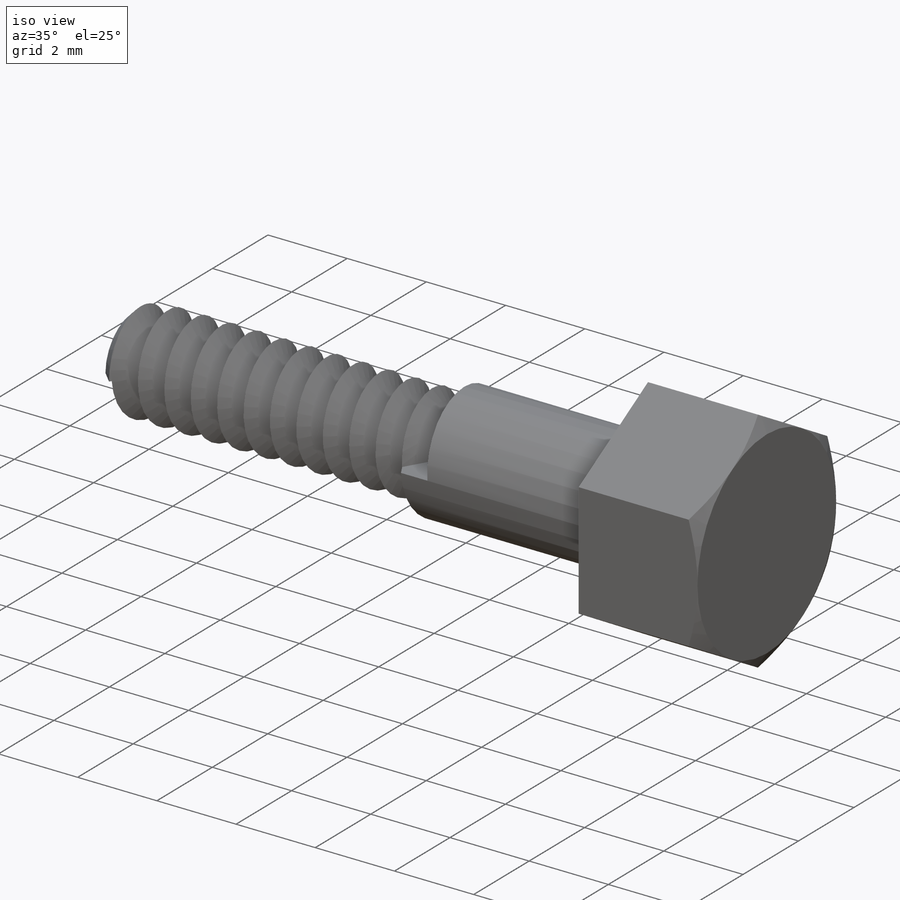
[diagram: iso view]
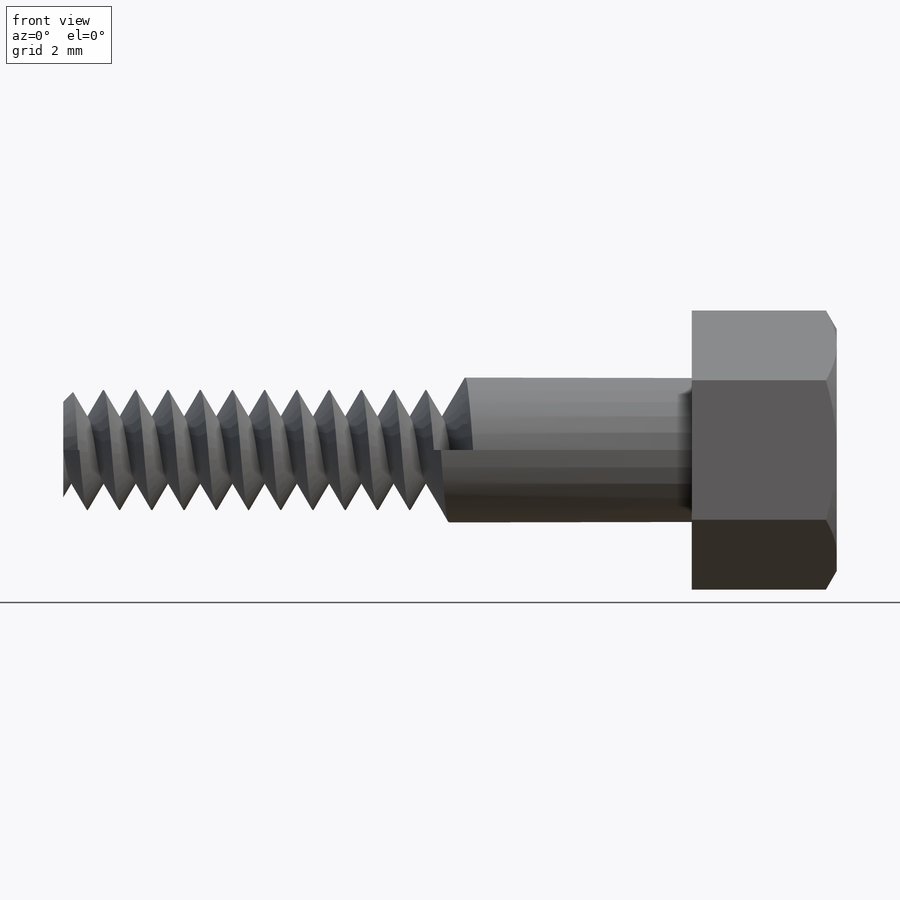
[diagram: front view]
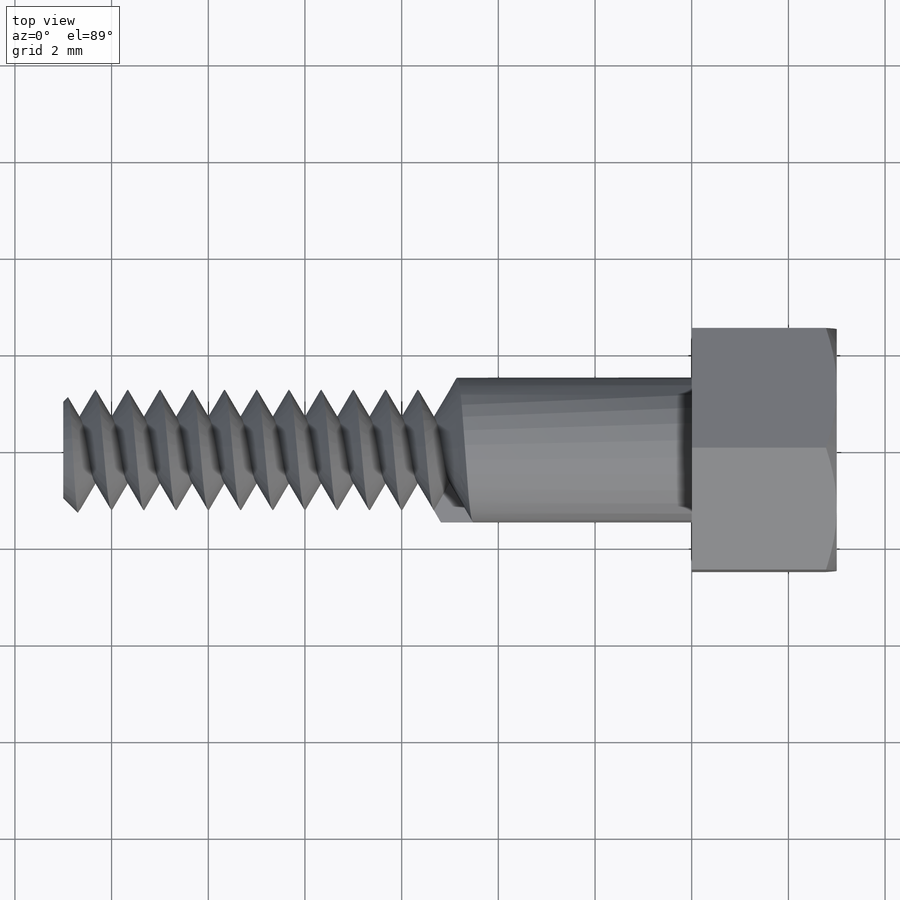
[diagram: top view]
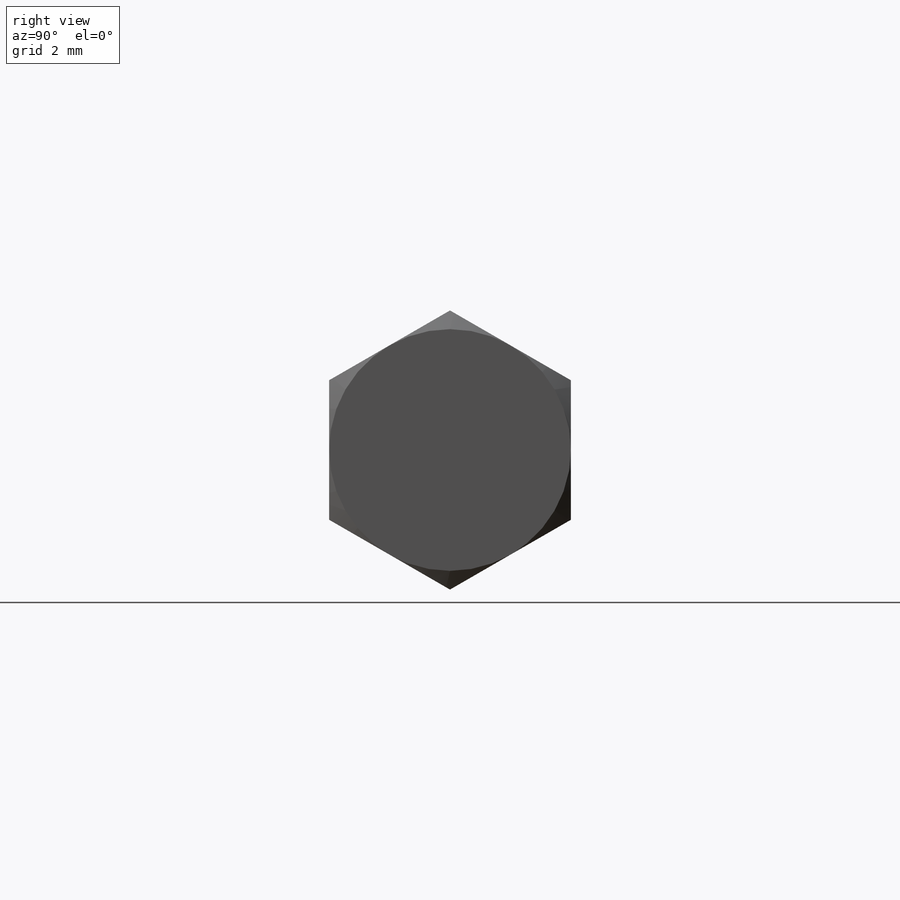
[diagram: right view]
SOLIDWORKS PART (.sldprt)
format: sldprt  version: not decoded by parser v0  size: 296,448 bytes
history: native  units: mm
features: sketch x5, extrude x2, material x1, cut_extrude x1, chamfer x1, helix x1, sweep x1 (+12 scaffold rows collapsed)
feature tree (24):
  scaffold x12  (default folders/planes/origin — collapsed)
  material  "Material <not specified>"
  sketch  "Sketch2"  dims[D1=5.0mm]
  extrude  "Boss-Extrude1"  Depth=3mm
  sketch  "Sketch3"
  cut_extrude  "Cut-Extrude1"  Depth=3mm
  sketch  "Sketch4"  dims[D1=3.0mm]
  extrude  "Boss-Extrude2"  Depth=13mm
  chamfer  "Chamfer1"  Distance=0.5mm Angle=45deg
  sketch  "Sketch5"  dims[D1=~1.791544mm]
  helix  "Helix/Spiral1"  Pitch=8mm
  sketch  "Sketch6"  dims[D1=1.0mm]
  sweep  "Cut-Sweep1"
decode coverage: 9 of 11 modeling features carry decoded parameters
note: ~ marks probable driven/reference dimensions
note: suppression state not decoded; provenance and decode notes live in map.json
